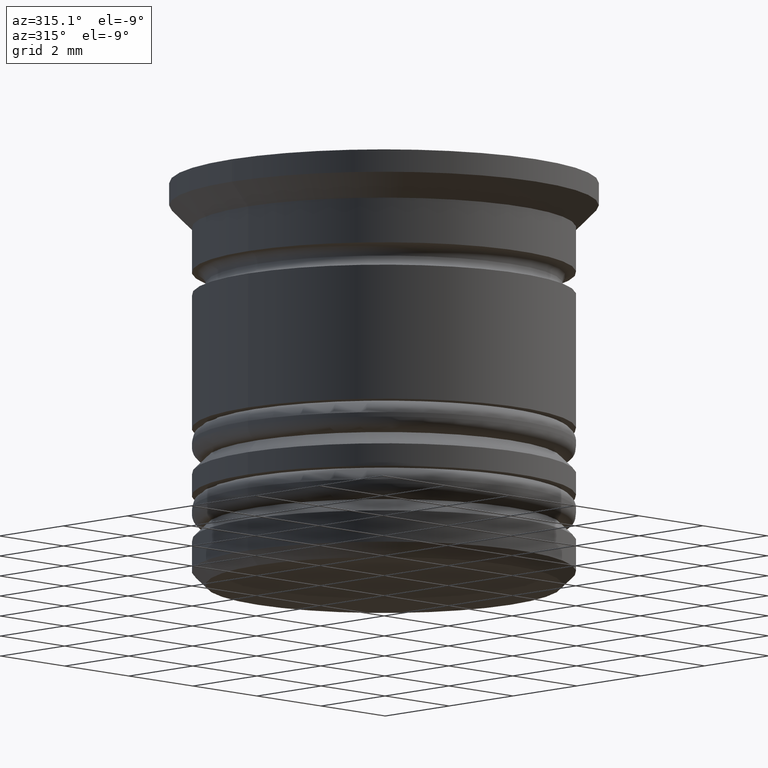
[diagram: clean part render]
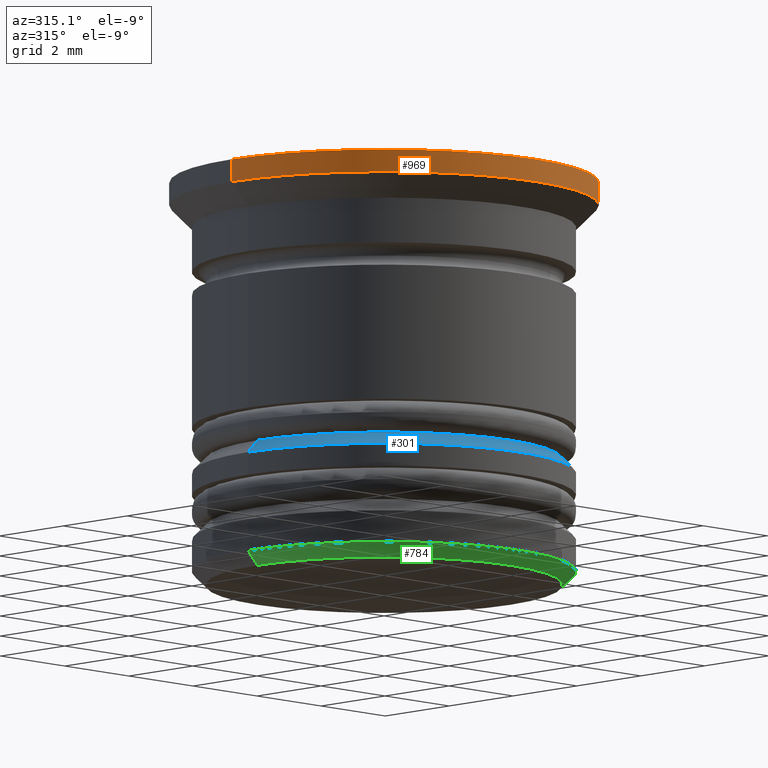
[diagram: same view with three faces highlighted in distinct colors, each labeled with its STEP entity id]
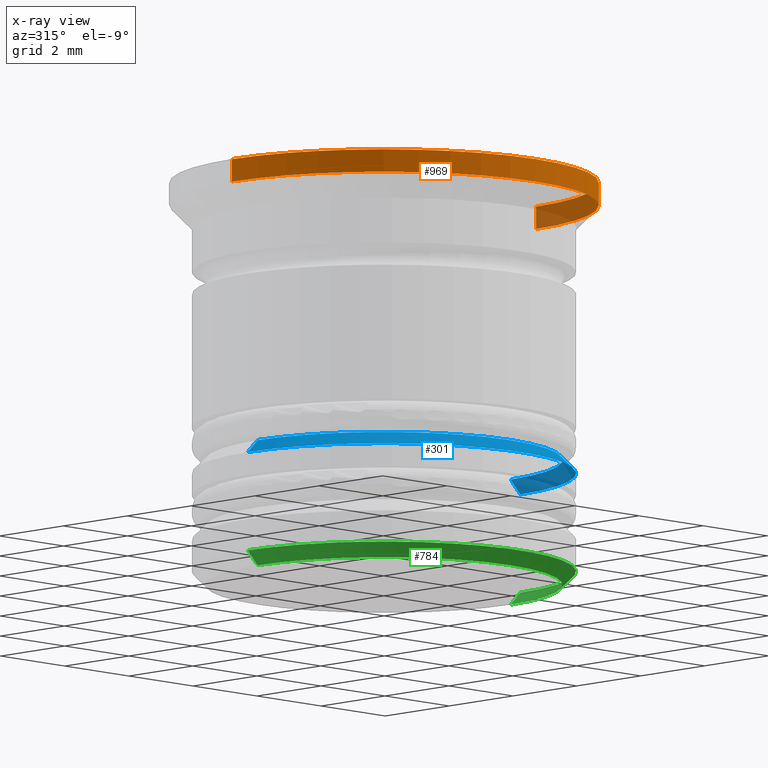
[diagram: x-ray of the same camera — body ghosted, the three highlighted faces saturated]
A machine part, auxiliary view with three faces highlighted in distinct colors.
The next image is the same camera in x-ray (body ghosted, the three faces saturated) — at least one of them is partly hidden behind the body in this view.
Their STEP definitions:

[orange] entity #969 — the highlighted cylindrical surface (partial cylindrical patch) has radius 4.75 mm, axis along (-0, -0, 1).
#13 = VERTEX_POINT ( 'NONE', #550 ) ;
#41 = ORIENTED_EDGE ( 'NONE', *, *, #266, .T. ) ;
#58 = EDGE_CURVE ( 'NONE', #320, #13, #912, .T. ) ;
#72 = CYLINDRICAL_SURFACE ( 'NONE', #778, 4.750000000000000000 ) ;
#110 = CARTESIAN_POINT ( 'NONE',  ( 0.000000000000000000, 0.000000000000000000, 0.000000000000000000 ) ) ;
#122 = DIRECTION ( 'NONE',  ( -0.000000000000000000, -0.000000000000000000, 1.000000000000000000 ) ) ;
#166 = CARTESIAN_POINT ( 'NONE',  ( 4.750000000000000000, 0.000000000000000000, 0.000000000000000000 ) ) ;
#167 = ORIENTED_EDGE ( 'NONE', *, *, #58, .F. ) ;
#212 = CIRCLE ( 'NONE', #1933, 4.750000000000000000 ) ;
#266 = EDGE_CURVE ( 'NONE', #320, #508, #1591, .T. ) ;
#320 = VERTEX_POINT ( 'NONE', #2023 ) ;
#351 = ORIENTED_EDGE ( 'NONE', *, *, #620, .F. ) ;
#388 = DIRECTION ( 'NONE',  ( 1.000000000000000000, 0.000000000000000000, 0.000000000000000000 ) ) ;
#437 = CARTESIAN_POINT ( 'NONE',  ( -4.750000000000000000, 5.817072295949927426E-16, 0.000000000000000000 ) ) ;
#504 = CARTESIAN_POINT ( 'NONE',  ( 4.750000000000000000, 0.000000000000000000, 0.000000000000000000 ) ) ;
#508 = VERTEX_POINT ( 'NONE', #966 ) ;
#543 = CARTESIAN_POINT ( 'NONE',  ( 0.000000000000000000, 0.000000000000000000, 0.000000000000000000 ) ) ;
#550 = CARTESIAN_POINT ( 'NONE',  ( -4.750000000000000000, 5.817072295949927426E-16, 0.000000000000000000 ) ) ;
#614 = VECTOR ( 'NONE', #1450, 1000.000000000000000 ) ;
#620 = EDGE_CURVE ( 'NONE', #13, #1107, #212, .T. ) ;
#778 = AXIS2_PLACEMENT_3D ( 'NONE', #543, #2000, #388 ) ;
#912 = LINE ( 'NONE', #437, #1622 ) ;
#966 = CARTESIAN_POINT ( 'NONE',  ( 4.750000000000000000, 0.000000000000000000, -0.4999999999999985012 ) ) ;
#969 = ADVANCED_FACE ( 'NONE', ( #1020 ), #72, .T. ) ;
#1020 = FACE_OUTER_BOUND ( 'NONE', #1253, .T. ) ;
#1107 = VERTEX_POINT ( 'NONE', #504 ) ;
#1220 = AXIS2_PLACEMENT_3D ( 'NONE', #1660, #1505, #1367 ) ;
#1232 = DIRECTION ( 'NONE',  ( -0.000000000000000000, -0.000000000000000000, 1.000000000000000000 ) ) ;
#1253 = EDGE_LOOP ( 'NONE', ( #167, #41, #1512, #351 ) ) ;
#1351 = EDGE_CURVE ( 'NONE', #508, #1107, #1908, .T. ) ;
#1367 = DIRECTION ( 'NONE',  ( -1.000000000000000000, 0.000000000000000000, 0.000000000000000000 ) ) ;
#1450 = DIRECTION ( 'NONE',  ( -0.000000000000000000, -0.000000000000000000, 1.000000000000000000 ) ) ;
#1505 = DIRECTION ( 'NONE',  ( -0.000000000000000000, -0.000000000000000000, 1.000000000000000000 ) ) ;
#1512 = ORIENTED_EDGE ( 'NONE', *, *, #1351, .T. ) ;
#1591 = CIRCLE ( 'NONE', #1220, 4.750000000000000000 ) ;
#1622 = VECTOR ( 'NONE', #1232, 1000.000000000000000 ) ;
#1660 = CARTESIAN_POINT ( 'NONE',  ( 0.000000000000000000, 0.000000000000000000, -0.4999999999999985012 ) ) ;
#1840 = DIRECTION ( 'NONE',  ( 1.000000000000000000, 0.000000000000000000, 0.000000000000000000 ) ) ;
#1908 = LINE ( 'NONE', #166, #614 ) ;
#1933 = AXIS2_PLACEMENT_3D ( 'NONE', #110, #122, #1840 ) ;
#2000 = DIRECTION ( 'NONE',  ( -0.000000000000000000, -0.000000000000000000, 1.000000000000000000 ) ) ;
#2023 = CARTESIAN_POINT ( 'NONE',  ( -4.750000000000000000, 5.817072295949927426E-16, -0.4999999999999985012 ) ) ;

[blue] entity #301 — the highlighted conical surface has half-angle 45 deg.
#26 = ORIENTED_EDGE ( 'NONE', *, *, #1996, .F. ) ;
#39 = CARTESIAN_POINT ( 'NONE',  ( -3.749999999999991562, 0.000000000000000000, -5.999999999999998224 ) ) ;
#87 = CARTESIAN_POINT ( 'NONE',  ( 3.950000000000000178, 0.000000000000000000, -6.200000000000004619 ) ) ;
#124 = DIRECTION ( 'NONE',  ( 0.000000000000000000, 0.000000000000000000, -1.000000000000000000 ) ) ;
#155 = AXIS2_PLACEMENT_3D ( 'NONE', #424, #124, #757 ) ;
#220 = ORIENTED_EDGE ( 'NONE', *, *, #1524, .T. ) ;
#257 = VERTEX_POINT ( 'NONE', #87 ) ;
#279 = CARTESIAN_POINT ( 'NONE',  ( 0.000000000000000000, 0.000000000000000000, -5.999999999999998224 ) ) ;
#301 = ADVANCED_FACE ( 'NONE', ( #760 ), #1063, .T. ) ;
#343 = VECTOR ( 'NONE', #987, 1000.000000000000000 ) ;
#346 = CARTESIAN_POINT ( 'NONE',  ( 3.749999999999991562, 4.592425496802564111E-16, -5.999999999999998224 ) ) ;
#353 = ORIENTED_EDGE ( 'NONE', *, *, #1332, .F. ) ;
#424 = CARTESIAN_POINT ( 'NONE',  ( 0.000000000000000000, 0.000000000000000000, -6.500000000000002665 ) ) ;
#656 = VECTOR ( 'NONE', #1055, 1000.000000000000000 ) ;
#677 = CARTESIAN_POINT ( 'NONE',  ( 0.000000000000000000, 0.000000000000000000, -6.200000000000004619 ) ) ;
#714 = CIRCLE ( 'NONE', #1495, 3.950000000000000178 ) ;
#757 = DIRECTION ( 'NONE',  ( 1.000000000000000000, 0.000000000000000000, 0.000000000000000000 ) ) ;
#760 = FACE_OUTER_BOUND ( 'NONE', #1364, .T. ) ;
#821 = DIRECTION ( 'NONE',  ( -1.000000000000000000, 0.000000000000000000, 0.000000000000000000 ) ) ;
#830 = LINE ( 'NONE', #39, #343 ) ;
#921 = CARTESIAN_POINT ( 'NONE',  ( 4.250000000000000000, 0.000000000000000000, -6.500000000000002665 ) ) ;
#939 = CARTESIAN_POINT ( 'NONE',  ( -3.950000000000000178, 4.837354856632045057E-16, -6.200000000000004619 ) ) ;
#983 = LINE ( 'NONE', #346, #656 ) ;
#987 = DIRECTION ( 'NONE',  ( -0.7071067811865507924, 0.000000000000000000, -0.7071067811865441310 ) ) ;
#1030 = VERTEX_POINT ( 'NONE', #921 ) ;
#1042 = CIRCLE ( 'NONE', #155, 4.250000000000000000 ) ;
#1055 = DIRECTION ( 'NONE',  ( 0.7071067811865507924, 8.659560562354974766E-17, -0.7071067811865441310 ) ) ;
#1063 = CONICAL_SURFACE ( 'NONE', #2022, 3.749999999999991562, 0.7853981633974530530 ) ;
#1085 = DIRECTION ( 'NONE',  ( -1.000000000000000000, 0.000000000000000000, 0.000000000000000000 ) ) ;
#1137 = DIRECTION ( 'NONE',  ( -0.000000000000000000, -0.000000000000000000, 1.000000000000000000 ) ) ;
#1242 = VERTEX_POINT ( 'NONE', #939 ) ;
#1332 = EDGE_CURVE ( 'NONE', #1242, #257, #714, .T. ) ;
#1364 = EDGE_LOOP ( 'NONE', ( #26, #353, #220, #1736 ) ) ;
#1495 = AXIS2_PLACEMENT_3D ( 'NONE', #677, #1137, #821 ) ;
#1524 = EDGE_CURVE ( 'NONE', #1242, #1755, #830, .T. ) ;
#1548 = DIRECTION ( 'NONE',  ( 0.000000000000000000, 0.000000000000000000, -1.000000000000000000 ) ) ;
#1662 = EDGE_CURVE ( 'NONE', #1030, #1755, #1042, .T. ) ;
#1736 = ORIENTED_EDGE ( 'NONE', *, *, #1662, .F. ) ;
#1755 = VERTEX_POINT ( 'NONE', #1922 ) ;
#1922 = CARTESIAN_POINT ( 'NONE',  ( -4.250000000000000000, 5.204748896376250699E-16, -6.500000000000002665 ) ) ;
#1996 = EDGE_CURVE ( 'NONE', #257, #1030, #983, .T. ) ;
#2022 = AXIS2_PLACEMENT_3D ( 'NONE', #279, #1548, #1085 ) ;

[green] entity #784 — the highlighted conical surface has half-angle 45 deg.
#14 = DIRECTION ( 'NONE',  ( -0.000000000000000000, -0.000000000000000000, 1.000000000000000000 ) ) ;
#23 = CONICAL_SURFACE ( 'NONE', #869, 4.250000000000000000, 0.7853981633974498333 ) ;
#43 = EDGE_LOOP ( 'NONE', ( #715, #1983, #1519, #355 ) ) ;
#123 = EDGE_CURVE ( 'NONE', #430, #1046, #1186, .T. ) ;
#299 = DIRECTION ( 'NONE',  ( -1.000000000000000000, 0.000000000000000000, 0.000000000000000000 ) ) ;
#355 = ORIENTED_EDGE ( 'NONE', *, *, #1005, .F. ) ;
#379 = EDGE_CURVE ( 'NONE', #1741, #430, #994, .T. ) ;
#411 = CIRCLE ( 'NONE', #1731, 4.250000000000000000 ) ;
#430 = VERTEX_POINT ( 'NONE', #1607 ) ;
#489 = EDGE_CURVE ( 'NONE', #1741, #1569, #1733, .T. ) ;
#560 = DIRECTION ( 'NONE',  ( -0.7071067811865486830, 8.659560562354947649E-17, 0.7071067811865464625 ) ) ;
#597 = DIRECTION ( 'NONE',  ( -0.000000000000000000, -0.000000000000000000, 1.000000000000000000 ) ) ;
#715 = ORIENTED_EDGE ( 'NONE', *, *, #123, .F. ) ;
#784 = ADVANCED_FACE ( 'NONE', ( #943 ), #23, .T. ) ;
#805 = VECTOR ( 'NONE', #1290, 999.9999999999998863 ) ;
#869 = AXIS2_PLACEMENT_3D ( 'NONE', #1543, #14, #1740 ) ;
#898 = CARTESIAN_POINT ( 'NONE',  ( 0.000000000000000000, 0.000000000000000000, -8.999999999999998224 ) ) ;
#926 = DIRECTION ( 'NONE',  ( -1.000000000000000000, 0.000000000000000000, 0.000000000000000000 ) ) ;
#943 = FACE_OUTER_BOUND ( 'NONE', #43, .T. ) ;
#994 = CIRCLE ( 'NONE', #1556, 3.949999999999996181 ) ;
#1005 = EDGE_CURVE ( 'NONE', #1046, #1569, #411, .T. ) ;
#1046 = VERTEX_POINT ( 'NONE', #1550 ) ;
#1094 = CARTESIAN_POINT ( 'NONE',  ( 4.250000000000000000, 0.000000000000000000, -8.699999999999993960 ) ) ;
#1186 = LINE ( 'NONE', #1955, #1422 ) ;
#1290 = DIRECTION ( 'NONE',  ( 0.7071067811865486830, 0.000000000000000000, 0.7071067811865464625 ) ) ;
#1370 = CARTESIAN_POINT ( 'NONE',  ( 0.000000000000000000, 0.000000000000000000, -8.699999999999993960 ) ) ;
#1422 = VECTOR ( 'NONE', #560, 999.9999999999998863 ) ;
#1519 = ORIENTED_EDGE ( 'NONE', *, *, #489, .T. ) ;
#1543 = CARTESIAN_POINT ( 'NONE',  ( 0.000000000000000000, 0.000000000000000000, -8.699999999999993960 ) ) ;
#1550 = CARTESIAN_POINT ( 'NONE',  ( -4.250000000000000000, 5.204748896376250699E-16, -8.699999999999993960 ) ) ;
#1556 = AXIS2_PLACEMENT_3D ( 'NONE', #898, #1716, #926 ) ;
#1569 = VERTEX_POINT ( 'NONE', #1954 ) ;
#1607 = CARTESIAN_POINT ( 'NONE',  ( -3.949999999999996181, 5.021051876504146399E-16, -8.999999999999998224 ) ) ;
#1716 = DIRECTION ( 'NONE',  ( 0.000000000000000000, 0.000000000000000000, -1.000000000000000000 ) ) ;
#1731 = AXIS2_PLACEMENT_3D ( 'NONE', #1370, #597, #299 ) ;
#1733 = LINE ( 'NONE', #1094, #805 ) ;
#1740 = DIRECTION ( 'NONE',  ( 1.000000000000000000, 0.000000000000000000, 0.000000000000000000 ) ) ;
#1741 = VERTEX_POINT ( 'NONE', #1872 ) ;
#1872 = CARTESIAN_POINT ( 'NONE',  ( 3.949999999999996181, 0.000000000000000000, -8.999999999999998224 ) ) ;
#1954 = CARTESIAN_POINT ( 'NONE',  ( 4.250000000000000000, 0.000000000000000000, -8.699999999999993960 ) ) ;
#1955 = CARTESIAN_POINT ( 'NONE',  ( -4.250000000000000000, 5.204748896376250699E-16, -8.699999999999993960 ) ) ;
#1983 = ORIENTED_EDGE ( 'NONE', *, *, #379, .F. ) ;